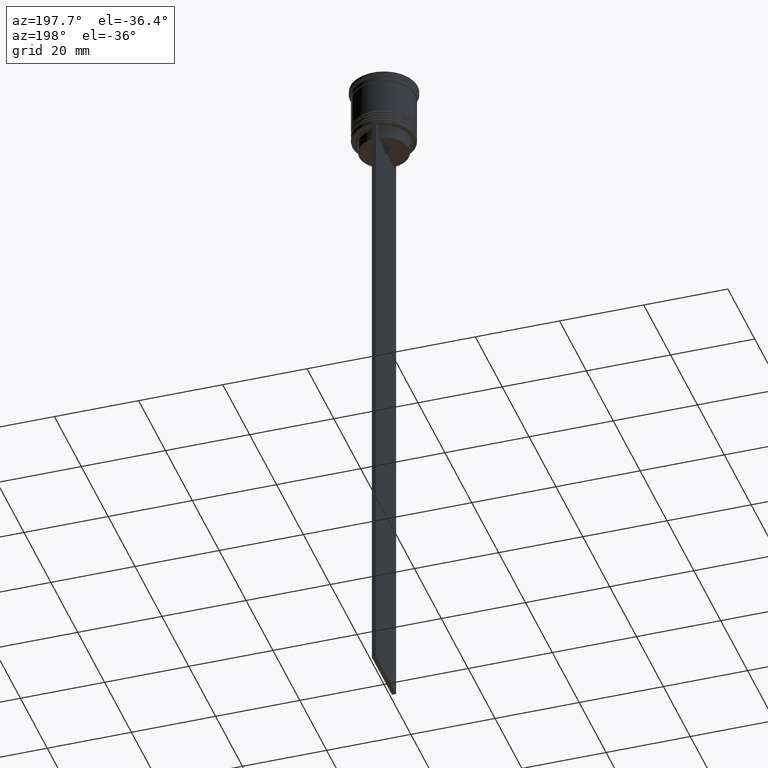
[diagram: clean part render]
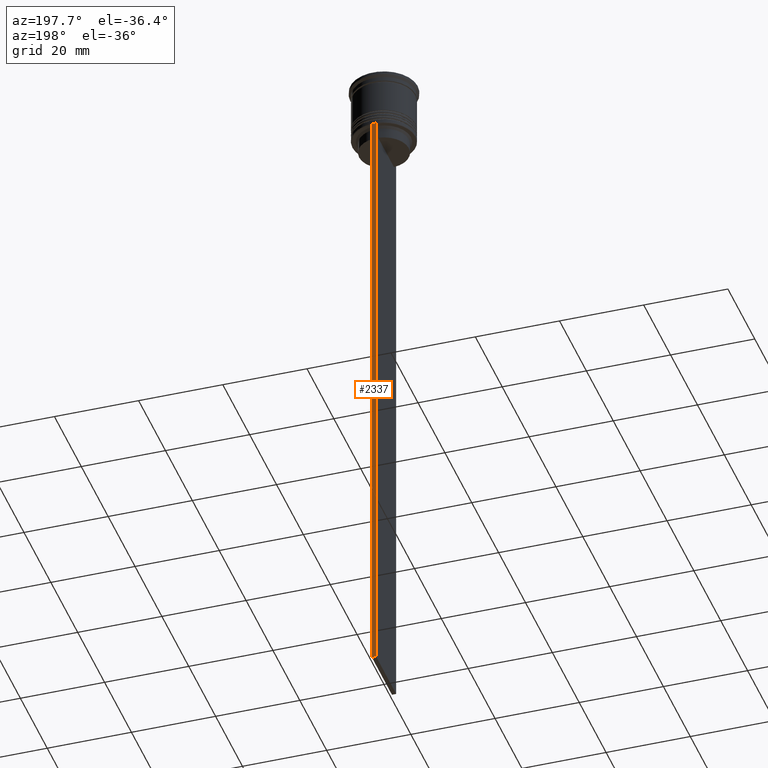
[diagram: same view with one face highlighted and labeled with its STEP entity id]
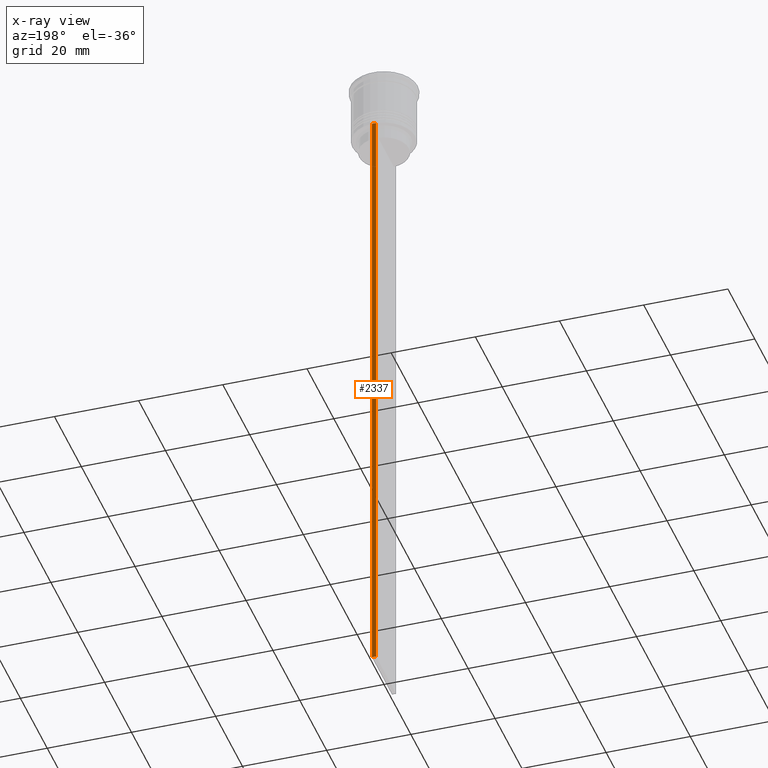
[diagram: x-ray of the same camera — body ghosted, the highlighted face saturated]
A machine part, auxiliary view. The second image highlights one B-rep face of the part: STEP entity #2337.
The next image is the same camera in x-ray: the body ghosted, the highlighted face saturated — about 0% of this face is hidden behind the body in this view.
In plain terms, the highlighted planar face has unit normal (0, -1, -0).
Its self-contained STEP definition (entity closure, byte-faithful):
#180 = CARTESIAN_POINT ( 'NONE',  ( 0.5000000000000000000, 7.500000000000002665, -14.00000000000000178 ) ) ;
#315 = VECTOR ( 'NONE', #606, 1000.000000000000000 ) ;
#483 = ORIENTED_EDGE ( 'NONE', *, *, #2024, .T. ) ;
#562 = CARTESIAN_POINT ( 'NONE',  ( 0.5000000000000000000, 7.500000000000002665, 1.033296378372908997 ) ) ;
#602 = EDGE_CURVE ( 'NONE', #2414, #2223, #2050, .T. ) ;
#606 = DIRECTION ( 'NONE',  ( -1.000000000000000000, 0.000000000000000000, 0.000000000000000000 ) ) ;
#608 = CARTESIAN_POINT ( 'NONE',  ( -0.5000000000000000000, 7.500000000000002665, -14.00000000000000178 ) ) ;
#677 = LINE ( 'NONE', #1443, #315 ) ;
#746 = PLANE ( 'NONE',  #1597 ) ;
#761 = CARTESIAN_POINT ( 'NONE',  ( -0.5000000000000000000, 7.500000000000002665, 1.033296378372908997 ) ) ;
#768 = FACE_OUTER_BOUND ( 'NONE', #1789, .T. ) ;
#957 = DIRECTION ( 'NONE',  ( 0.000000000000000000, 0.000000000000000000, -1.000000000000000000 ) ) ;
#1004 = CARTESIAN_POINT ( 'NONE',  ( 0.5000000000000000000, 7.500000000000002665, 1.033296378372908997 ) ) ;
#1023 = VERTEX_POINT ( 'NONE', #2011 ) ;
#1052 = CARTESIAN_POINT ( 'NONE',  ( 0.5000000000000000000, 7.500000000000002665, -163.9999999999999716 ) ) ;
#1055 = ORIENTED_EDGE ( 'NONE', *, *, #602, .T. ) ;
#1206 = LINE ( 'NONE', #1004, #1642 ) ;
#1246 = CARTESIAN_POINT ( 'NONE',  ( 0.5000000000000000000, 7.500000000000002665, -14.00000000000000178 ) ) ;
#1263 = DIRECTION ( 'NONE',  ( 1.000000000000000000, 0.000000000000000000, 0.000000000000000000 ) ) ;
#1319 = DIRECTION ( 'NONE',  ( 0.000000000000000000, -1.000000000000000000, -0.000000000000000000 ) ) ;
#1443 = CARTESIAN_POINT ( 'NONE',  ( 0.5000000000000000000, 7.500000000000002665, -163.9999999999999716 ) ) ;
#1449 = ORIENTED_EDGE ( 'NONE', *, *, #2279, .F. ) ;
#1532 = DIRECTION ( 'NONE',  ( 0.000000000000000000, 0.000000000000000000, -1.000000000000000000 ) ) ;
#1540 = VECTOR ( 'NONE', #1263, 1000.000000000000000 ) ;
#1578 = DIRECTION ( 'NONE',  ( 0.000000000000000000, 0.000000000000000000, -1.000000000000000000 ) ) ;
#1597 = AXIS2_PLACEMENT_3D ( 'NONE', #562, #1319, #1532 ) ;
#1642 = VECTOR ( 'NONE', #1578, 1000.000000000000000 ) ;
#1789 = EDGE_LOOP ( 'NONE', ( #1449, #1055, #483, #2335 ) ) ;
#1858 = VERTEX_POINT ( 'NONE', #1052 ) ;
#1881 = EDGE_CURVE ( 'NONE', #1858, #1023, #677, .T. ) ;
#2011 = CARTESIAN_POINT ( 'NONE',  ( -0.5000000000000000000, 7.500000000000002665, -163.9999999999999716 ) ) ;
#2024 = EDGE_CURVE ( 'NONE', #2223, #1858, #1206, .T. ) ;
#2050 = LINE ( 'NONE', #1246, #1540 ) ;
#2085 = VECTOR ( 'NONE', #957, 1000.000000000000000 ) ;
#2223 = VERTEX_POINT ( 'NONE', #180 ) ;
#2279 = EDGE_CURVE ( 'NONE', #2414, #1023, #2487, .T. ) ;
#2335 = ORIENTED_EDGE ( 'NONE', *, *, #1881, .T. ) ;
#2337 = ADVANCED_FACE ( 'NONE', ( #768 ), #746, .F. ) ;
#2414 = VERTEX_POINT ( 'NONE', #608 ) ;
#2487 = LINE ( 'NONE', #761, #2085 ) ;